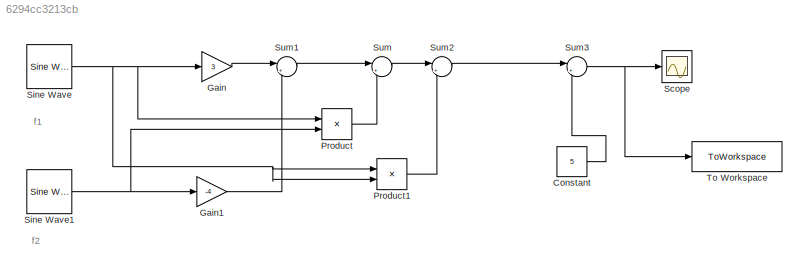
MODEL slx_6294cc3213cb
KIND model
CONFIG AbsTol = auto
CONFIG EnableMultiTasking = off
CONFIG FixedStep = auto
CONFIG MaxStep = auto
CONFIG MinStep = auto
CONFIG RelTol = 1e-3
CONFIG SampleTimeConstraint = Unconstrained
CONFIG SolverName = VariableStepAuto
CONFIG StartTime = 0.0
CONFIG StopTime = 20
BLOCK [Constant] Constant
  Value = 5
BLOCK [Gain] Gain
  Gain = 3
BLOCK [Gain] Gain1
  Gain = -4
BLOCK [Product] Product
BLOCK [Product] Product1
BLOCK [Scope] Scope
  Floating = off
  NumInputPorts = 1
  ScopeSpecificationString = Simulink.scopes.TimeScopeBlockCfg('CurrentConfiguration', extmgr.ConfigurationSet(extmgr.Configuration('Core','General UI',true),extmgr.Configuration('Core','Source UI',true),extmgr.Configuration('Sources','WiredSimulink',true),extmgr.Configuration('Visuals','Time Domain',true,'SerializedDisplays',{struct('MinYLimReal','-9.60691','MaxYLimReal','17.65361','YLabelReal','','MinYLimMag','0.00000','Max...<+1443ch>
BLOCK [Reference] Sine Wave  REF=dspsrcs4/Sine Wave
  LibrarySourceBlock = dsphdlsupportsrcs/Sine Wave
  SourceBlock = dspsrcs4/Sine Wave
  SourceType = Sine Wave
BLOCK [Reference] Sine Wave1  REF=dspsrcs4/Sine Wave
  LibrarySourceBlock = dsphdlsupportsrcs/Sine Wave
  SourceBlock = dspsrcs4/Sine Wave
  SourceType = Sine Wave
BLOCK [Sum] Sum
  Inputs = |++
BLOCK [Sum] Sum1
  Inputs = |++
BLOCK [Sum] Sum2
  Inputs = |++
BLOCK [Sum] Sum3
  Inputs = |++
BLOCK [ToWorkspace] To Workspace
  FixptAsFi = on
  MaxDataPoints = inf
  SampleTime = -1
  SaveFormat = Timeseries
  VariableName = simout
ANNOTATION (root): f1
ANNOTATION (root): f2
LINE Constant:1 -> Sum3:2
LINE Gain1:1 -> Sum1:2
LINE Gain:1 -> Sum1:1
LINE Product1:1 -> Sum2:2
LINE Product:1 -> Sum:2
NET Sine Wave1:1 -> Gain1:1, Product:2
NET Sine Wave:1 -> Gain:1, Product1:1, Product1:2, Product:1
LINE Sum1:1 -> Sum:1
LINE Sum2:1 -> Sum3:1
NET Sum3:1 -> Scope:1, To Workspace:1
LINE Sum:1 -> Sum2:1
note: NET lines group one-source signal fan-out (src -> all destinations, sorted); 1:1 wires keep LINE
